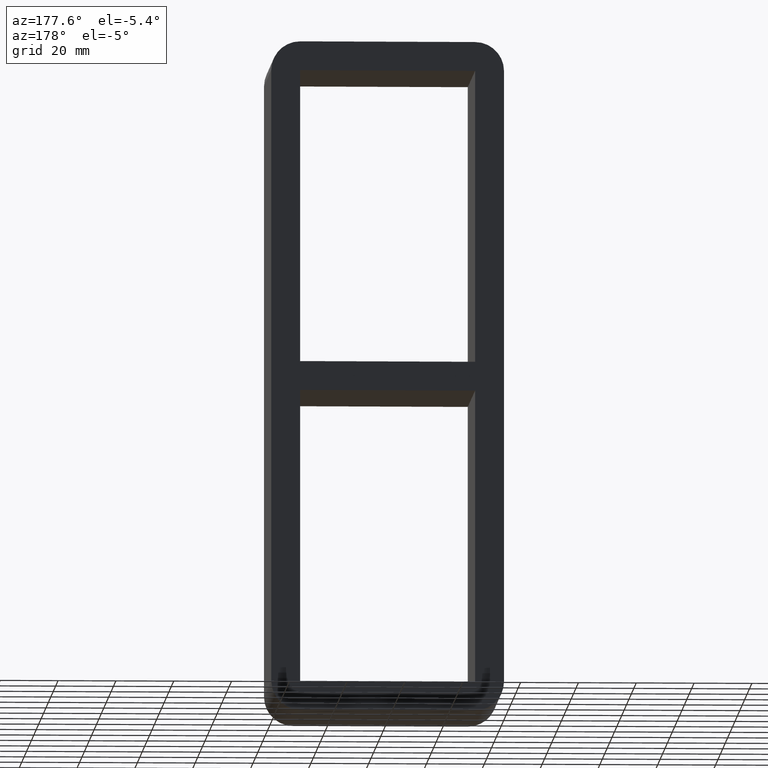
[diagram: clean part render]
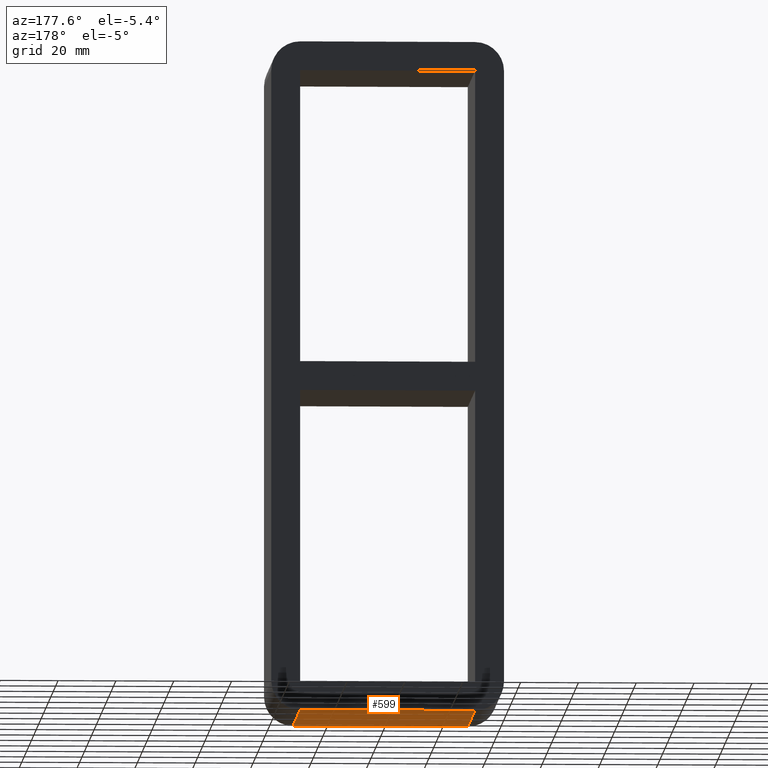
[diagram: same view with one face highlighted and labeled with its STEP entity id]
A machine part, auxiliary view. The second image highlights one B-rep face of the part: STEP entity #599.
In plain terms, the highlighted planar face has unit normal (0, 0, -1).
Its self-contained STEP definition (entity closure, byte-faithful):
#246=CARTESIAN_POINT('',(30.250000000000004,57.0,-116.00000000000001));
#247=VERTEX_POINT('',#246);
#265=CARTESIAN_POINT('',(30.250000000000004,-3.0,-116.00000000000001));
#266=VERTEX_POINT('',#265);
#274=CARTESIAN_POINT('',(30.250000000000004,-3.0,-116.00000000000001));
#275=DIRECTION('',(0.0,1.0,0.0));
#276=VECTOR('',#275,60.0);
#277=LINE('',#274,#276);
#278=EDGE_CURVE('',#266,#247,#277,.T.);
#331=CARTESIAN_POINT('',(-30.250000000000004,-3.0,-116.00000000000001));
#332=VERTEX_POINT('',#331);
#340=CARTESIAN_POINT('',(-30.25,-3.0,-116.00000000000001));
#341=DIRECTION('',(1.0,0.0,0.0));
#342=VECTOR('',#341,60.5);
#343=LINE('',#340,#342);
#344=EDGE_CURVE('',#332,#266,#343,.T.);
#434=CARTESIAN_POINT('',(-30.250000000000004,57.0,-116.00000000000001));
#435=VERTEX_POINT('',#434);
#443=CARTESIAN_POINT('',(-30.250000000000004,57.0,-116.00000000000001));
#444=DIRECTION('',(0.0,-1.0,0.0));
#445=VECTOR('',#444,60.0);
#446=LINE('',#443,#445);
#447=EDGE_CURVE('',#435,#332,#446,.T.);
#583=CARTESIAN_POINT('',(40.25,0.0,-116.00000000000001));
#584=DIRECTION('',(0.0,0.0,-1.0));
#585=DIRECTION('',(-1.0,0.0,0.0));
#586=AXIS2_PLACEMENT_3D('',#583,#584,#585);
#587=PLANE('',#586);
#588=ORIENTED_EDGE('',*,*,#278,.F.);
#589=ORIENTED_EDGE('',*,*,#344,.F.);
#590=ORIENTED_EDGE('',*,*,#447,.F.);
#591=CARTESIAN_POINT('',(30.25,57.0,-116.00000000000001));
#592=DIRECTION('',(-1.0,0.0,0.0));
#593=VECTOR('',#592,60.5);
#594=LINE('',#591,#593);
#595=EDGE_CURVE('',#247,#435,#594,.T.);
#596=ORIENTED_EDGE('',*,*,#595,.F.);
#597=EDGE_LOOP('',(#588,#589,#590,#596));
#598=FACE_OUTER_BOUND('',#597,.T.);
#599=ADVANCED_FACE('',(#598),#587,.T.);